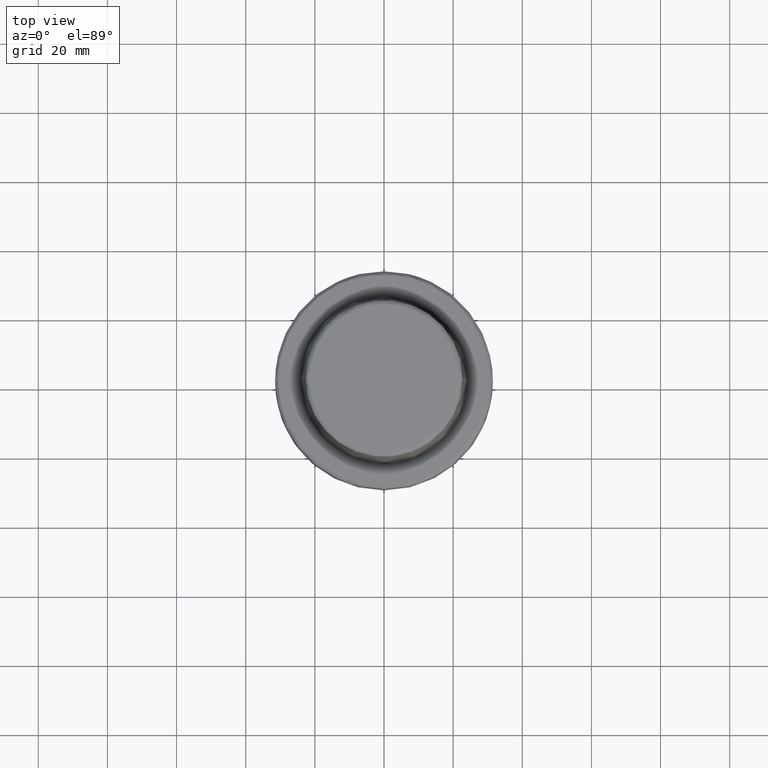
[diagram: clean part render]
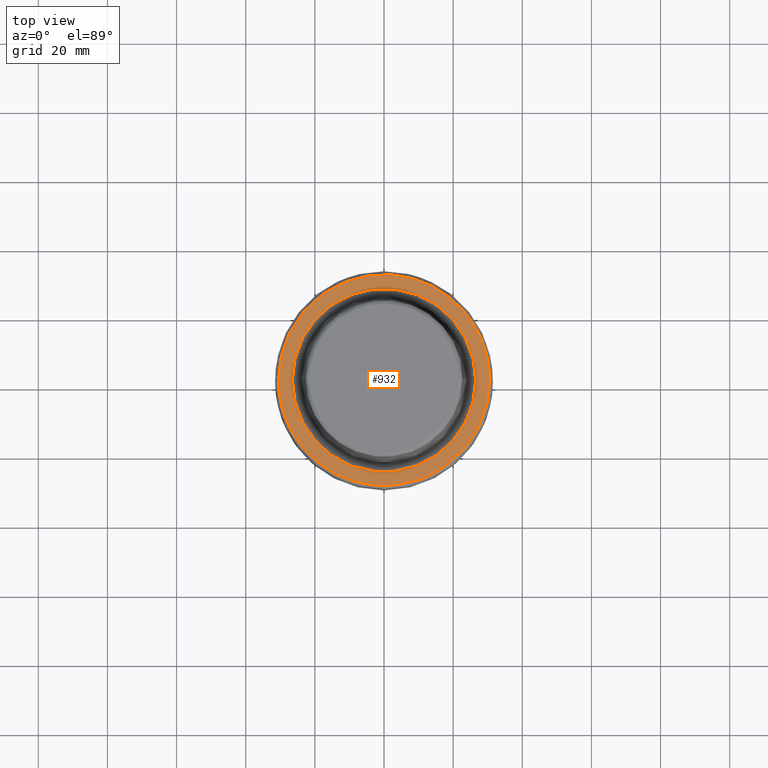
[diagram: same view with one face highlighted and labeled with its STEP entity id]
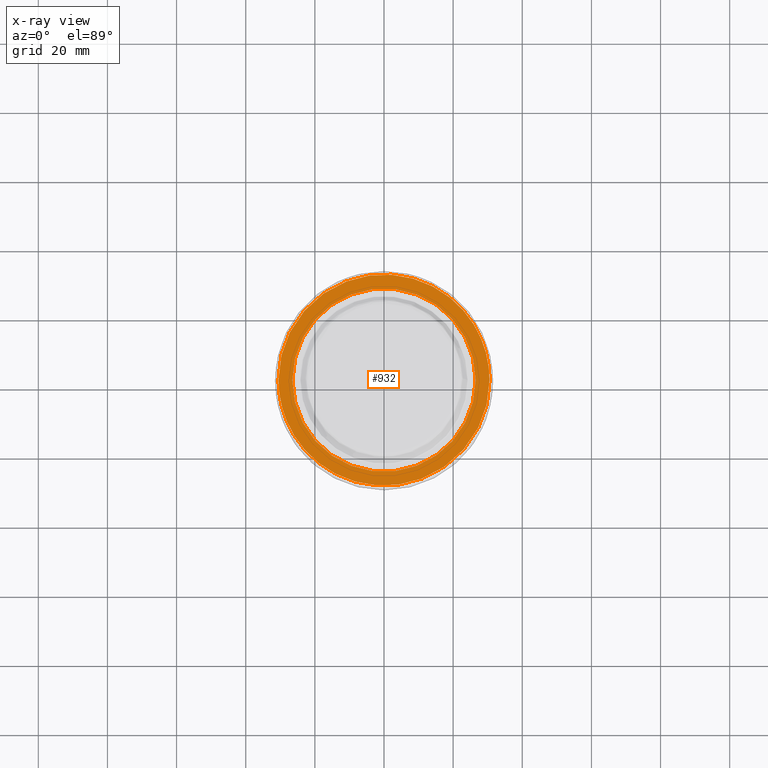
[diagram: x-ray of the same camera — body ghosted, the highlighted face saturated]
A machine part, top view. The second image highlights one B-rep face of the part: STEP entity #932.
The next image is the same camera in x-ray: the body ghosted, the highlighted face saturated — about 0% of this face is hidden behind the body in this view.
In plain terms, the highlighted planar face has unit normal (0, 0, -1).
Its self-contained STEP definition (entity closure, byte-faithful):
#87 = EDGE_CURVE ( 'NONE', #1698, #1038, #1209, .T. ) ;
#138 = CARTESIAN_POINT ( 'NONE',  ( 30.90072634999999900, -30.90072634999999900, 0.0000000000000000000 ) ) ;
#139 = EDGE_LOOP ( 'NONE', ( #1943, #2299 ) ) ;
#185 = CARTESIAN_POINT ( 'NONE',  ( -26.52499999999999900, 3.248375634738354300E-015, -2.168404344971008900E-016 ) ) ;
#359 = DIRECTION ( 'NONE',  ( -1.000000000000000000, 0.0000000000000000000, 0.0000000000000000000 ) ) ;
#441 = ORIENTED_EDGE ( 'NONE', *, *, #1555, .F. ) ;
#586 = CARTESIAN_POINT ( 'NONE',  ( 30.53431457484531800, 61.06862915018960800, 1.812143615675412200E-011 ) ) ;
#590 = AXIS2_PLACEMENT_3D ( 'NONE', #878, #2302, #1093 ) ;
#797 = DIRECTION ( 'NONE',  ( 0.0000000000000000000, -0.0000000000000000000, 1.000000000000000000 ) ) ;
#878 = CARTESIAN_POINT ( 'NONE',  ( 0.0000000000000000000, 0.0000000000000000000, -2.168404344971008900E-016 ) ) ;
#903 = CARTESIAN_POINT ( 'NONE',  ( -30.53431457484531800, 61.06862915018960800, 1.812143615675412200E-011 ) ) ;
#932 = ADVANCED_FACE ( 'NONE', ( #2300, #2645 ), #2609, .F. ) ;
#979 = CARTESIAN_POINT ( 'NONE',  ( 30.53431456891446100, 0.0000000000000000000, 1.087286161903233600E-011 ) ) ;
#1038 = VERTEX_POINT ( 'NONE', #1444 ) ;
#1077 = ORIENTED_EDGE ( 'NONE', *, *, #87, .F. ) ;
#1093 = DIRECTION ( 'NONE',  ( 1.000000000000000000, 0.0000000000000000000, 0.0000000000000000000 ) ) ;
#1209 =( BOUNDED_CURVE ( )  B_SPLINE_CURVE ( 3, ( #2321, #903, #586, #2591 ),
 .UNSPECIFIED., .F., .F. ) 
 B_SPLINE_CURVE_WITH_KNOTS ( ( 4, 4 ),
 ( 0.0000000000000000000, 1.000000000000000000 ),
 .UNSPECIFIED. ) 
 CURVE ( )  GEOMETRIC_REPRESENTATION_ITEM ( )  RATIONAL_B_SPLINE_CURVE ( ( 0.9777428143250702600, 0.3259142714416898300, 0.3259142714416898300, 0.9777428143250702600 ) ) 
 REPRESENTATION_ITEM ( '' )  );
#1239 = AXIS2_PLACEMENT_3D ( 'NONE', #2043, #797, #2226 ) ;
#1411 = CARTESIAN_POINT ( 'NONE',  ( -30.53431456891446100, 0.0000000000000000000, 1.087286161903233600E-011 ) ) ;
#1444 = CARTESIAN_POINT ( 'NONE',  ( 30.53431456891446100, 0.0000000000000000000, 1.087286161903233600E-011 ) ) ;
#1555 = EDGE_CURVE ( 'NONE', #1038, #1698, #1572, .T. ) ;
#1567 = CARTESIAN_POINT ( 'NONE',  ( 26.52499999999999900, 0.0000000000000000000, -2.168404344971008900E-016 ) ) ;
#1572 =( BOUNDED_CURVE ( )  B_SPLINE_CURVE ( 3, ( #979, #2205, #2608, #1411 ),
 .UNSPECIFIED., .F., .T. ) 
 B_SPLINE_CURVE_WITH_KNOTS ( ( 4, 4 ),
 ( 0.0000000000000000000, 1.000000000000000000 ),
 .UNSPECIFIED. ) 
 CURVE ( )  GEOMETRIC_REPRESENTATION_ITEM ( )  RATIONAL_B_SPLINE_CURVE ( ( 0.9777428143250679300, 0.3259142714416890500, 0.3259142714416890500, 0.9777428143250679300 ) ) 
 REPRESENTATION_ITEM ( '' )  );
#1605 = DIRECTION ( 'NONE',  ( 0.0000000000000000000, 0.0000000000000000000, -1.000000000000000000 ) ) ;
#1687 = VERTEX_POINT ( 'NONE', #185 ) ;
#1698 = VERTEX_POINT ( 'NONE', #2664 ) ;
#1845 = VERTEX_POINT ( 'NONE', #1567 ) ;
#1929 = CIRCLE ( 'NONE', #590, 26.52499999999999900 ) ;
#1943 = ORIENTED_EDGE ( 'NONE', *, *, #2549, .F. ) ;
#2043 = CARTESIAN_POINT ( 'NONE',  ( 0.0000000000000000000, 0.0000000000000000000, -2.168404344971008900E-016 ) ) ;
#2205 = CARTESIAN_POINT ( 'NONE',  ( 30.53431457484532200, -61.06862915018963600, 1.812143641416425000E-011 ) ) ;
#2226 = DIRECTION ( 'NONE',  ( 1.000000000000000000, 0.0000000000000000000, 0.0000000000000000000 ) ) ;
#2255 = EDGE_CURVE ( 'NONE', #1687, #1845, #1929, .T. ) ;
#2299 = ORIENTED_EDGE ( 'NONE', *, *, #2255, .F. ) ;
#2300 = FACE_BOUND ( 'NONE', #139, .T. ) ;
#2302 = DIRECTION ( 'NONE',  ( 0.0000000000000000000, -0.0000000000000000000, 1.000000000000000000 ) ) ;
#2310 = AXIS2_PLACEMENT_3D ( 'NONE', #138, #1605, #359 ) ;
#2321 = CARTESIAN_POINT ( 'NONE',  ( -30.53431456891446100, 0.0000000000000000000, 1.087286161903233600E-011 ) ) ;
#2509 = EDGE_LOOP ( 'NONE', ( #441, #1077 ) ) ;
#2549 = EDGE_CURVE ( 'NONE', #1845, #1687, #2642, .T. ) ;
#2591 = CARTESIAN_POINT ( 'NONE',  ( 30.53431456891446100, 0.0000000000000000000, 1.087286161903233600E-011 ) ) ;
#2608 = CARTESIAN_POINT ( 'NONE',  ( -30.53431457484532200, -61.06862915018963600, 1.812143641416425000E-011 ) ) ;
#2609 = PLANE ( 'NONE',  #2310 ) ;
#2642 = CIRCLE ( 'NONE', #1239, 26.52499999999999900 ) ;
#2645 = FACE_OUTER_BOUND ( 'NONE', #2509, .T. ) ;
#2664 = CARTESIAN_POINT ( 'NONE',  ( -30.53431456891446100, 0.0000000000000000000, 1.087286161903233600E-011 ) ) ;